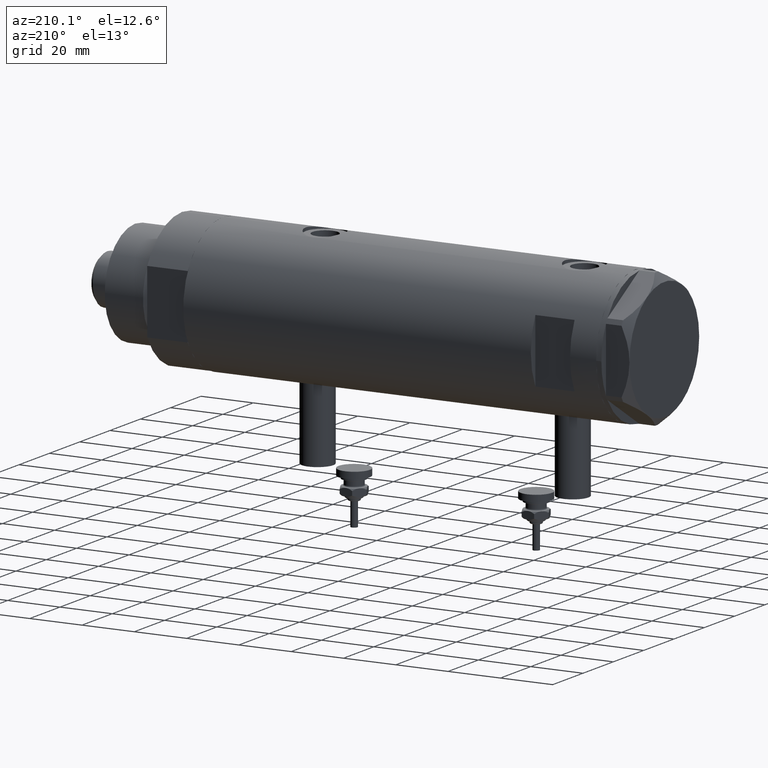
[diagram: clean part render]
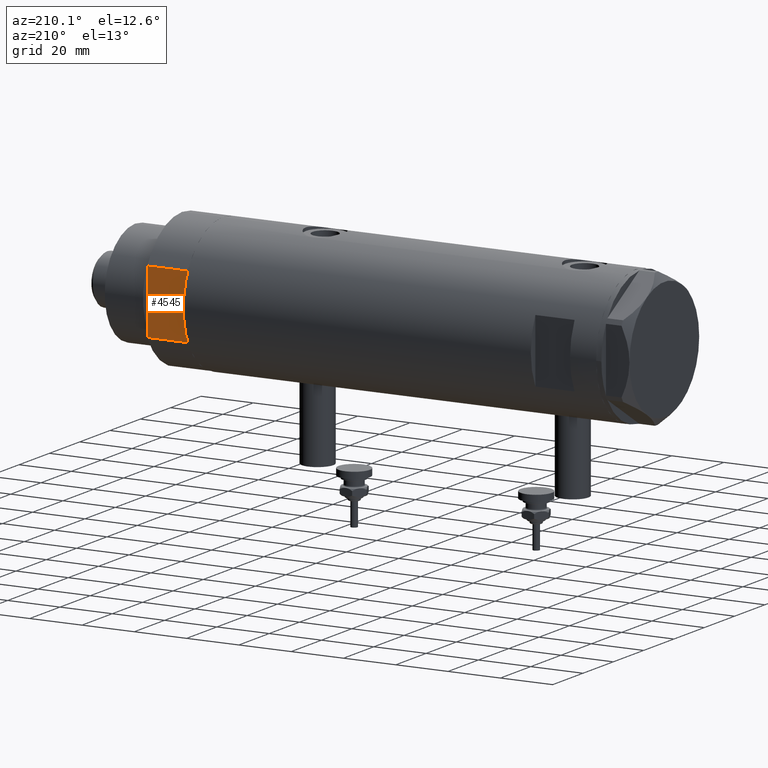
[diagram: same view with one face highlighted and labeled with its STEP entity id]
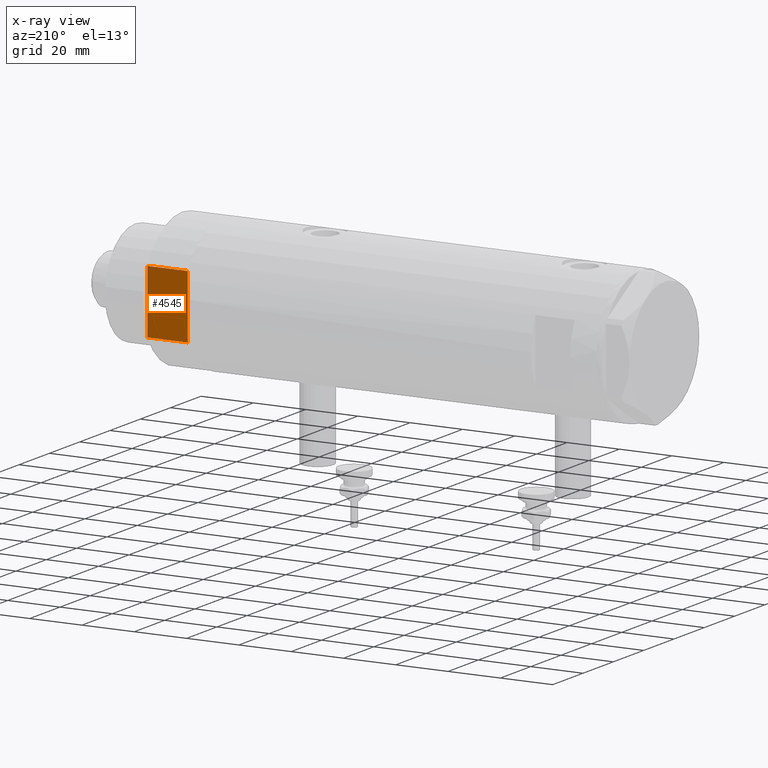
[diagram: x-ray of the same camera — body ghosted, the highlighted face saturated]
A machine part, auxiliary view. The second image highlights one B-rep face of the part: STEP entity #4545.
The next image is the same camera in x-ray: the body ghosted, the highlighted face saturated — about 0% of this face is hidden behind the body in this view.
In plain terms, the highlighted planar face has unit normal (0, -1, -0).
Its self-contained STEP definition (entity closure, byte-faithful):
#332 = CARTESIAN_POINT ( 'NONE',  ( -12.12435565298215145, 23.00000000000000355, 0.000000000000000000 ) ) ;
#384 = EDGE_CURVE ( 'NONE', #4730, #890, #4163, .T. ) ;
#536 = LINE ( 'NONE', #1994, #4069 ) ;
#888 = FACE_OUTER_BOUND ( 'NONE', #3769, .T. ) ;
#890 = VERTEX_POINT ( 'NONE', #1617 ) ;
#932 = CARTESIAN_POINT ( 'NONE',  ( -12.12435565298215145, 23.00000000000000355, 0.000000000000000000 ) ) ;
#950 = VECTOR ( 'NONE', #2296, 1000.000000000000000 ) ;
#967 = ORIENTED_EDGE ( 'NONE', *, *, #1547, .T. ) ;
#1277 = CARTESIAN_POINT ( 'NONE',  ( -12.12435565298214613, 23.00000000000000355, 15.50000000000000000 ) ) ;
#1299 = VERTEX_POINT ( 'NONE', #1277 ) ;
#1447 = PLANE ( 'NONE',  #3483 ) ;
#1547 = EDGE_CURVE ( 'NONE', #1299, #6202, #536, .T. ) ;
#1617 = CARTESIAN_POINT ( 'NONE',  ( 12.12435565298214080, 23.00000000000000355, 0.000000000000000000 ) ) ;
#1653 = CARTESIAN_POINT ( 'NONE',  ( -12.12435565298215145, 23.00000000000000355, 0.000000000000000000 ) ) ;
#1994 = CARTESIAN_POINT ( 'NONE',  ( -12.12435565298215145, 23.00000000000000355, 15.50000000000000000 ) ) ;
#2218 = ORIENTED_EDGE ( 'NONE', *, *, #2935, .T. ) ;
#2261 = CARTESIAN_POINT ( 'NONE',  ( 12.12435565298215323, 23.00000000000000355, 0.000000000000000000 ) ) ;
#2296 = DIRECTION ( 'NONE',  ( -0.000000000000000000, -0.000000000000000000, 1.000000000000000000 ) ) ;
#2668 = LINE ( 'NONE', #2261, #4092 ) ;
#2798 = LINE ( 'NONE', #332, #950 ) ;
#2828 = CARTESIAN_POINT ( 'NONE',  ( -12.12435565298215145, 23.00000000000000355, 0.000000000000000000 ) ) ;
#2830 = EDGE_CURVE ( 'NONE', #890, #6202, #2668, .T. ) ;
#2935 = EDGE_CURVE ( 'NONE', #4730, #1299, #2798, .T. ) ;
#3028 = DIRECTION ( 'NONE',  ( 1.000000000000000000, 0.000000000000000000, 0.000000000000000000 ) ) ;
#3367 = DIRECTION ( 'NONE',  ( 0.000000000000000000, -1.000000000000000000, 0.000000000000000000 ) ) ;
#3483 = AXIS2_PLACEMENT_3D ( 'NONE', #2828, #3367, #4767 ) ;
#3625 = DIRECTION ( 'NONE',  ( -0.000000000000000000, -0.000000000000000000, 1.000000000000000000 ) ) ;
#3769 = EDGE_LOOP ( 'NONE', ( #967, #5981, #6000, #2218 ) ) ;
#4069 = VECTOR ( 'NONE', #3028, 1000.000000000000000 ) ;
#4092 = VECTOR ( 'NONE', #3625, 1000.000000000000000 ) ;
#4163 = LINE ( 'NONE', #1653, #4882 ) ;
#4545 = ADVANCED_FACE ( 'NONE', ( #888 ), #1447, .F. ) ;
#4659 = DIRECTION ( 'NONE',  ( 1.000000000000000000, 0.000000000000000000, 0.000000000000000000 ) ) ;
#4730 = VERTEX_POINT ( 'NONE', #932 ) ;
#4767 = DIRECTION ( 'NONE',  ( 0.000000000000000000, -0.000000000000000000, -1.000000000000000000 ) ) ;
#4882 = VECTOR ( 'NONE', #4659, 1000.000000000000000 ) ;
#4891 = CARTESIAN_POINT ( 'NONE',  ( 12.12435565298214790, 23.00000000000000355, 15.50000000000000000 ) ) ;
#5981 = ORIENTED_EDGE ( 'NONE', *, *, #2830, .F. ) ;
#6000 = ORIENTED_EDGE ( 'NONE', *, *, #384, .F. ) ;
#6202 = VERTEX_POINT ( 'NONE', #4891 ) ;